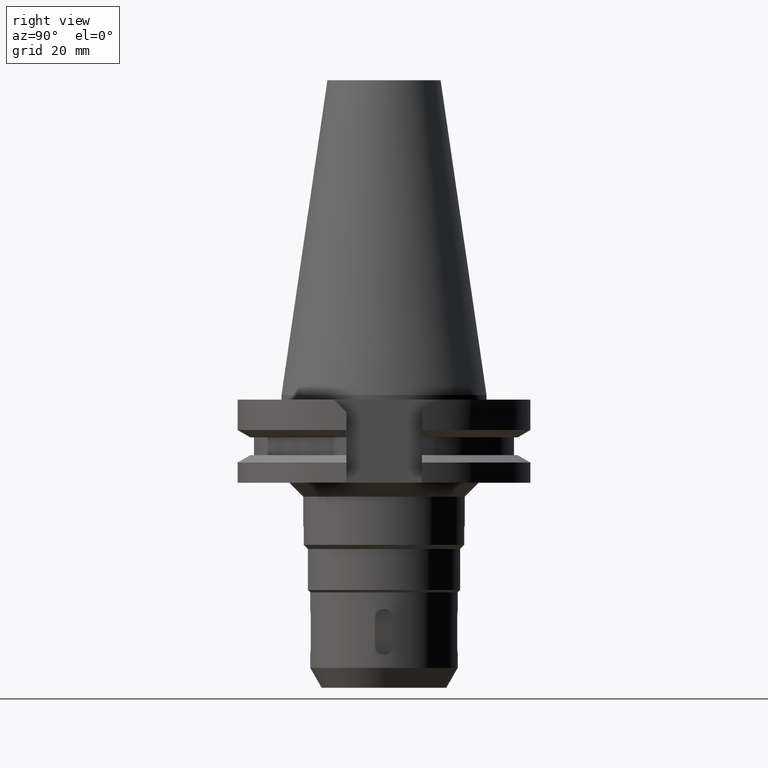
[diagram: clean part render]
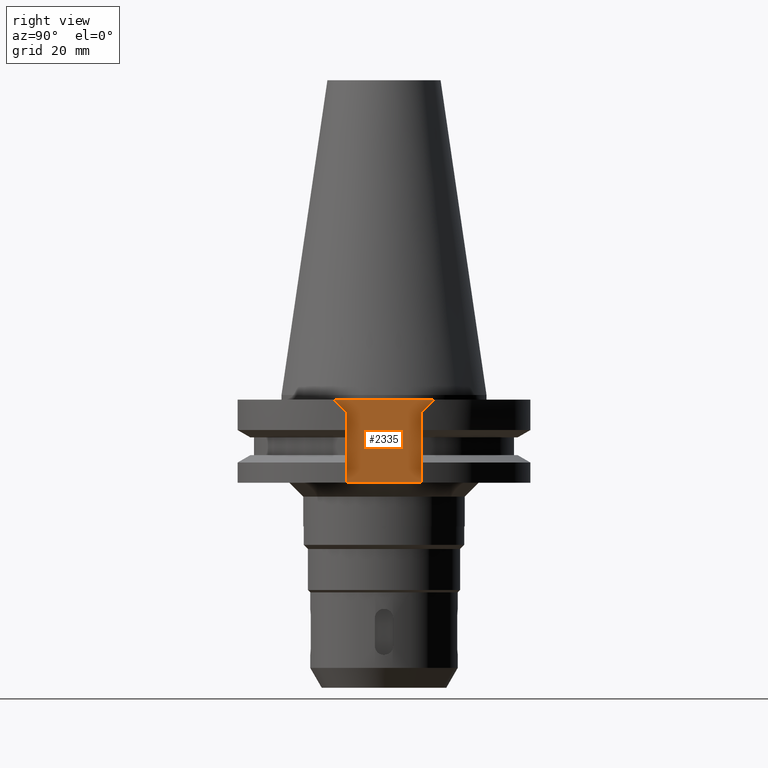
[diagram: same view with one face highlighted and labeled with its STEP entity id]
A machine part, right view. The second image highlights one B-rep face of the part: STEP entity #2335.
In plain terms, the highlighted planar face has unit normal (1, 0, 0).
Its self-contained STEP definition (entity closure, byte-faithful):
#94=DIRECTION('',(0.E0,-1.E0,0.E0));
#95=VECTOR('',#94,2.178E1);
#96=CARTESIAN_POINT('',(2.257E1,1.089E1,-9.999999999998E-1));
#97=LINE('',#96,#95);
#163=DIRECTION('',(0.E0,-1.E0,0.E0));
#164=VECTOR('',#163,1.638E1);
#165=CARTESIAN_POINT('',(2.257E1,8.19E0,-1.905E1));
#166=LINE('',#165,#164);
#170=DIRECTION('',(0.E0,0.E0,1.E0));
#171=VECTOR('',#170,1.535E1);
#172=CARTESIAN_POINT('',(2.257E1,-8.19E0,-1.905E1));
#173=LINE('',#172,#171);
#177=DIRECTION('',(0.E0,-7.071067811865E-1,7.071067811866E-1));
#178=VECTOR('',#177,3.818376618407E0);
#179=CARTESIAN_POINT('',(2.257E1,-8.19E0,-3.7E0));
#180=LINE('',#179,#178);
#184=DIRECTION('',(0.E0,-7.071067811865E-1,-7.071067811866E-1));
#185=VECTOR('',#184,3.818376618408E0);
#186=CARTESIAN_POINT('',(2.257E1,1.089E1,-9.999999999998E-1));
#187=LINE('',#186,#185);
#191=DIRECTION('',(0.E0,0.E0,-1.E0));
#192=VECTOR('',#191,1.535E1);
#193=CARTESIAN_POINT('',(2.257E1,8.19E0,-3.7E0));
#194=LINE('',#193,#192);
#2053=CARTESIAN_POINT('',(2.257E1,8.19E0,-1.905E1));
#2054=CARTESIAN_POINT('',(2.257E1,-8.19E0,-1.905E1));
#2055=VERTEX_POINT('',#2053);
#2056=VERTEX_POINT('',#2054);
#2073=CARTESIAN_POINT('',(2.257E1,-8.19E0,-3.7E0));
#2074=VERTEX_POINT('',#2073);
#2075=CARTESIAN_POINT('',(2.257E1,-1.089E1,-9.999999999998E-1));
#2076=VERTEX_POINT('',#2075);
#2077=CARTESIAN_POINT('',(2.257E1,1.089E1,-9.999999999998E-1));
#2078=VERTEX_POINT('',#2077);
#2079=CARTESIAN_POINT('',(2.257E1,8.19E0,-3.7E0));
#2080=VERTEX_POINT('',#2079);
#2317=CARTESIAN_POINT('',(2.257E1,0.E0,0.E0));
#2318=DIRECTION('',(1.E0,0.E0,0.E0));
#2319=DIRECTION('',(0.E0,0.E0,-1.E0));
#2320=AXIS2_PLACEMENT_3D('',#2317,#2318,#2319);
#2321=PLANE('',#2320);
#2323=ORIENTED_EDGE('',*,*,#2322,.T.);
#2325=ORIENTED_EDGE('',*,*,#2324,.T.);
#2327=ORIENTED_EDGE('',*,*,#2326,.T.);
#2328=ORIENTED_EDGE('',*,*,#2290,.F.);
#2330=ORIENTED_EDGE('',*,*,#2329,.T.);
#2332=ORIENTED_EDGE('',*,*,#2331,.T.);
#2333=EDGE_LOOP('',(#2323,#2325,#2327,#2328,#2330,#2332));
#2334=FACE_OUTER_BOUND('',#2333,.F.);
#2290=EDGE_CURVE('',#2078,#2076,#97,.T.);
#2322=EDGE_CURVE('',#2055,#2056,#166,.T.);
#2324=EDGE_CURVE('',#2056,#2074,#173,.T.);
#2326=EDGE_CURVE('',#2074,#2076,#180,.T.);
#2329=EDGE_CURVE('',#2078,#2080,#187,.T.);
#2331=EDGE_CURVE('',#2080,#2055,#194,.T.);
#2335=ADVANCED_FACE('',(#2334),#2321,.T.);